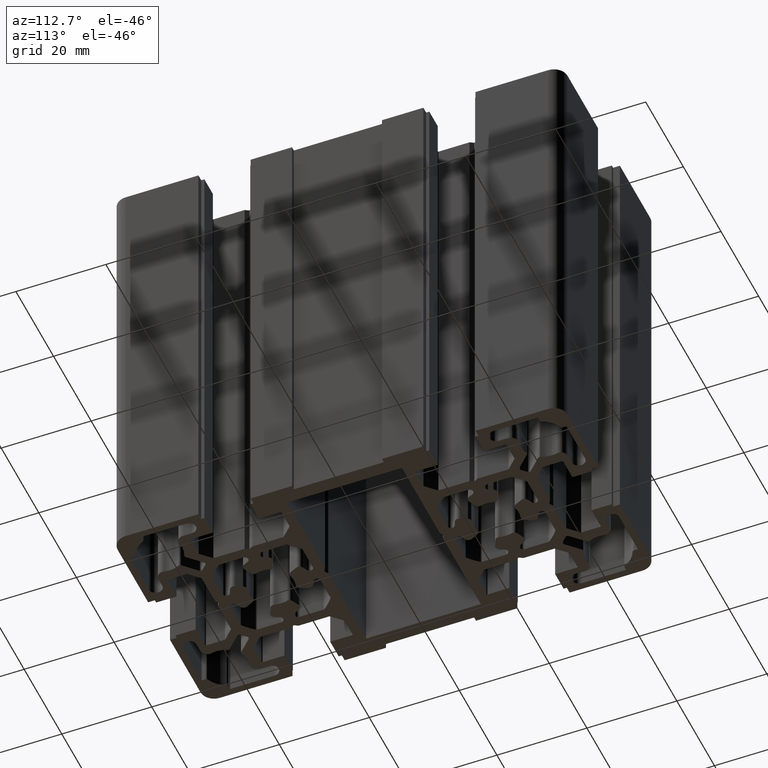
[diagram: clean part render]
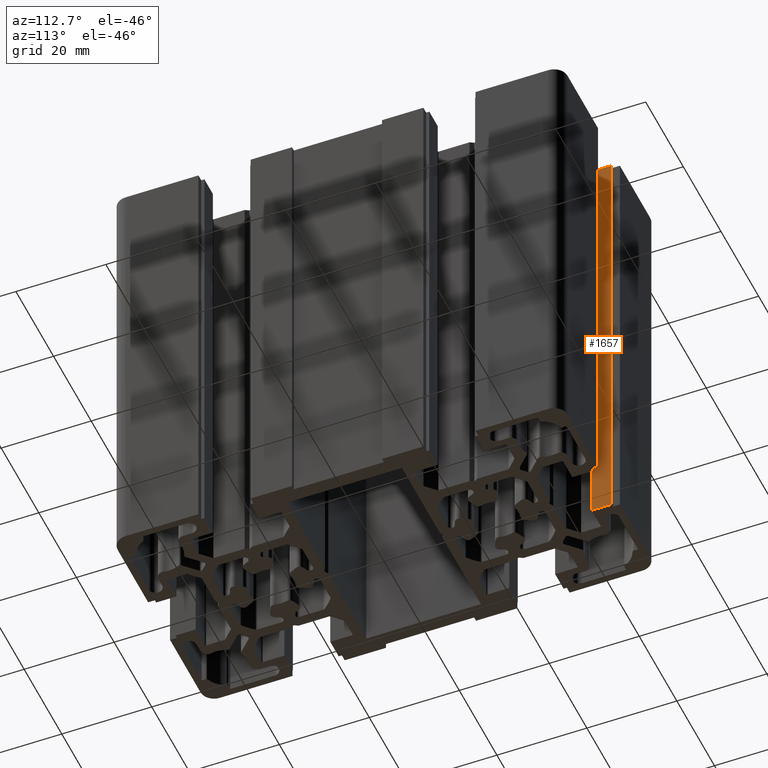
[diagram: same view with one face highlighted and labeled with its STEP entity id]
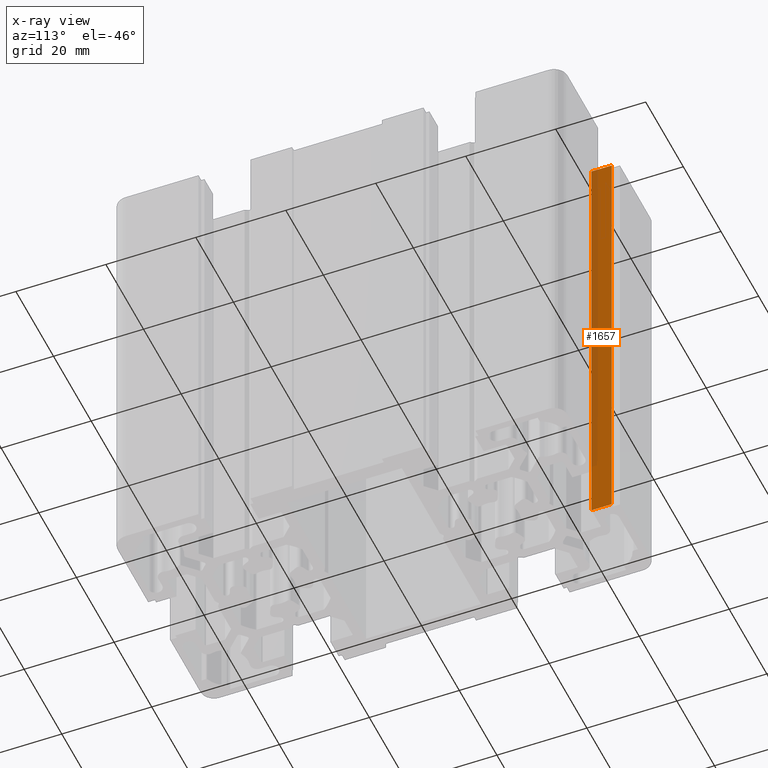
[diagram: x-ray of the same camera — body ghosted, the highlighted face saturated]
A machine part, auxiliary view. The second image highlights one B-rep face of the part: STEP entity #1657.
The next image is the same camera in x-ray: the body ghosted, the highlighted face saturated — about 27% of this face is hidden behind the body in this view.
In plain terms, the highlighted planar face has unit normal (-1, 0, 0).
Its self-contained STEP definition (entity closure, byte-faithful):
#1 = VERTEX_POINT ( 'NONE', #4721 ) ;
#1657 = ADVANCED_FACE ( 'NONE', ( #7514 ), #7505, .F. ) ;
#1658 = ORIENTED_EDGE ( 'NONE', *, *, #12983, .T. ) ;
#1660 = ORIENTED_EDGE ( 'NONE', *, *, #1672, .T. ) ;
#1661 = ORIENTED_EDGE ( 'NONE', *, *, #4478, .F. ) ;
#1669 = EDGE_LOOP ( 'NONE', ( #1658, #1721, #1661, #1660 ) ) ;
#1672 = EDGE_CURVE ( 'NONE', #4464, #1, #7516, .T. ) ;
#1720 = EDGE_CURVE ( 'NONE', #4400, #12980, #7596, .T. ) ;
#1721 = ORIENTED_EDGE ( 'NONE', *, *, #1720, .F. ) ;
#4400 = VERTEX_POINT ( 'NONE', #11743 ) ;
#4464 = VERTEX_POINT ( 'NONE', #11906 ) ;
#4478 = EDGE_CURVE ( 'NONE', #4464, #4400, #11934, .T. ) ;
#4721 = CARTESIAN_POINT ( 'NONE',  ( -5.099999999999994300, 44.00000000000022000, 0.0000000000000000000 ) ) ;
#7502 = DIRECTION ( 'NONE',  ( 0.0000000000000000000, 0.0000000000000000000, 1.000000000000000000 ) ) ;
#7505 = PLANE ( 'NONE',  #7512 ) ;
#7512 = AXIS2_PLACEMENT_3D ( 'NONE', #7513, #7517, #7502 ) ;
#7513 = CARTESIAN_POINT ( 'NONE',  ( -5.099999999999994300, 44.00000000000022000, 100.0000000000000000 ) ) ;
#7514 = FACE_OUTER_BOUND ( 'NONE', #1669, .T. ) ;
#7516 = LINE ( 'NONE', #7547, #7546 ) ;
#7517 = DIRECTION ( 'NONE',  ( -1.000000000000000000, 0.0000000000000000000, 0.0000000000000000000 ) ) ;
#7545 = DIRECTION ( 'NONE',  ( -0.0000000000000000000, -0.0000000000000000000, -1.000000000000000000 ) ) ;
#7546 = VECTOR ( 'NONE', #7545, 1000.000000000000000 ) ;
#7547 = CARTESIAN_POINT ( 'NONE',  ( -5.099999999999994300, 44.00000000000022000, 100.0000000000000000 ) ) ;
#7588 = DIRECTION ( 'NONE',  ( -0.0000000000000000000, -0.0000000000000000000, -1.000000000000000000 ) ) ;
#7589 = VECTOR ( 'NONE', #7588, 1000.000000000000000 ) ;
#7590 = CARTESIAN_POINT ( 'NONE',  ( -5.099999999999994300, 48.50000000000022000, 100.0000000000000000 ) ) ;
#7596 = LINE ( 'NONE', #7590, #7589 ) ;
#11743 = CARTESIAN_POINT ( 'NONE',  ( -5.099999999999994300, 48.50000000000022000, 100.0000000000000000 ) ) ;
#11906 = CARTESIAN_POINT ( 'NONE',  ( -5.099999999999994300, 44.00000000000022000, 100.0000000000000000 ) ) ;
#11931 = DIRECTION ( 'NONE',  ( 0.0000000000000000000, 1.000000000000000000, 0.0000000000000000000 ) ) ;
#11932 = VECTOR ( 'NONE', #11931, 1000.000000000000000 ) ;
#11933 = CARTESIAN_POINT ( 'NONE',  ( -5.099999999999994300, 44.00000000000022000, 100.0000000000000000 ) ) ;
#11934 = LINE ( 'NONE', #11933, #11932 ) ;
#12751 = DIRECTION ( 'NONE',  ( 0.0000000000000000000, 1.000000000000000000, 0.0000000000000000000 ) ) ;
#12752 = VECTOR ( 'NONE', #12751, 1000.000000000000000 ) ;
#12753 = CARTESIAN_POINT ( 'NONE',  ( -5.099999999999994300, 44.00000000000022000, 0.0000000000000000000 ) ) ;
#12754 = LINE ( 'NONE', #12753, #12752 ) ;
#12764 = CARTESIAN_POINT ( 'NONE',  ( -5.099999999999994300, 48.50000000000022000, 0.0000000000000000000 ) ) ;
#12980 = VERTEX_POINT ( 'NONE', #12764 ) ;
#12983 = EDGE_CURVE ( 'NONE', #1, #12980, #12754, .T. ) ;